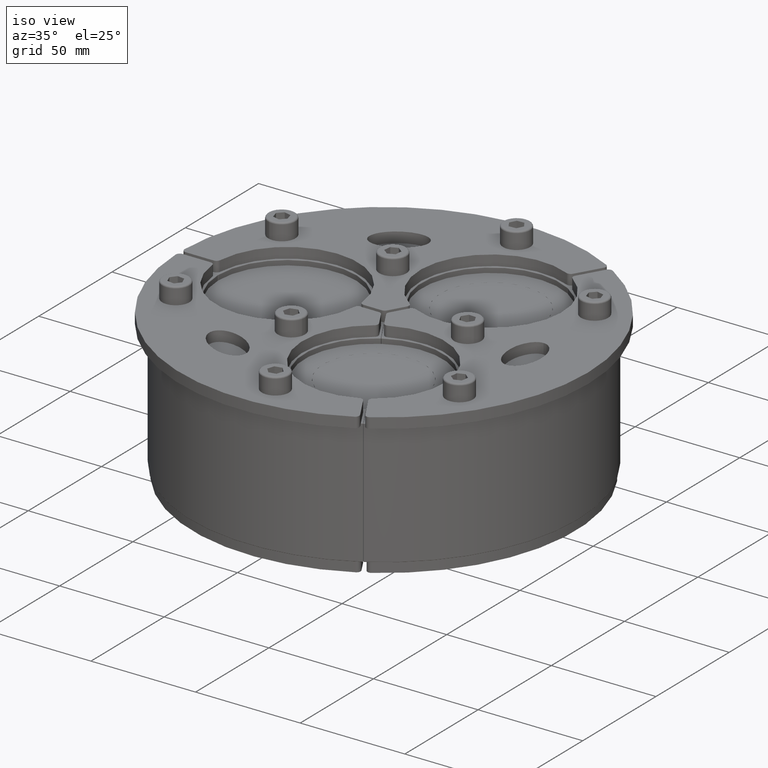
[diagram: clean part render]
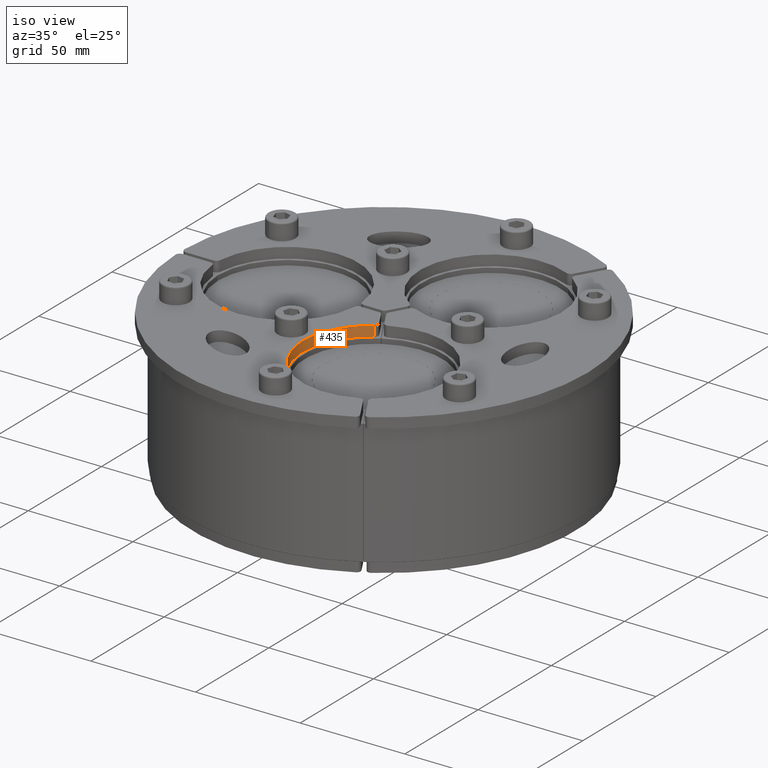
[diagram: same view with one face highlighted and labeled with its STEP entity id]
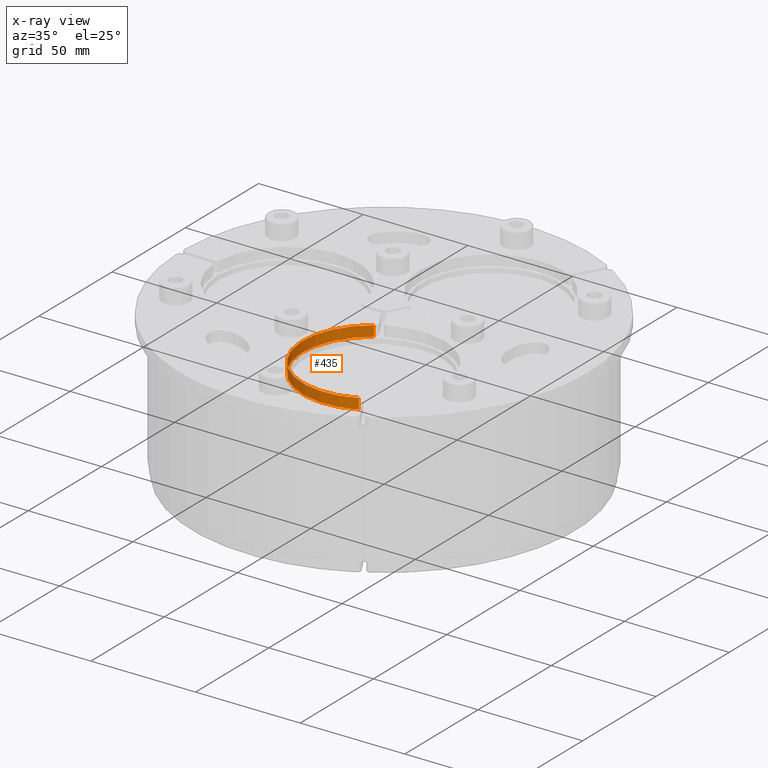
[diagram: x-ray of the same camera — body ghosted, the highlighted face saturated]
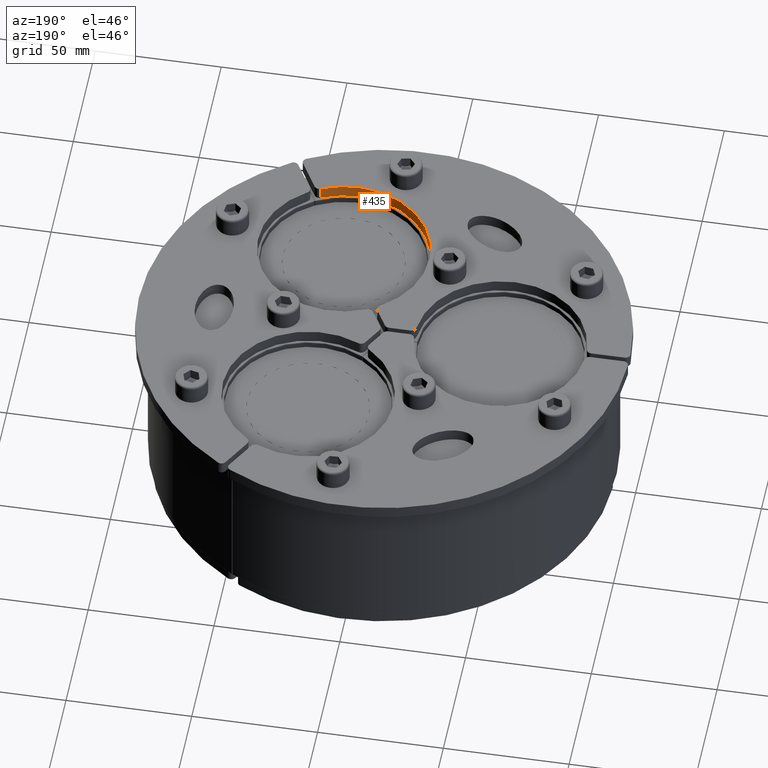
[diagram: same view with one face highlighted and labeled with its STEP entity id]
A machine part, iso view. The second image highlights one B-rep face of the part: STEP entity #435.
The next image is the same camera in x-ray: the body ghosted, the highlighted face saturated — about 0% of this face is hidden behind the body in this view.
A second angle (auxiliary view) of the same face is appended — the face is thin or edge-on in the first view.
In plain terms, the highlighted cylindrical surface (partial cylindrical patch) has radius 34 mm, axis along (0, -0, 1).
Its self-contained STEP definition (entity closure, byte-faithful):
#245=CARTESIAN_POINT('',(37.612130742004354,70.812788092741613,0.0));
#246=VERTEX_POINT('',#245);
#254=CARTESIAN_POINT('',(3.730391969883773,12.127895090652308,0.0));
#255=VERTEX_POINT('',#254);
#256=CARTESIAN_POINT('',(23.124999999999972,40.0536749250303,0.0));
#257=DIRECTION('',(0.0,0.0,1.0));
#258=DIRECTION('',(-1.0,0.0,0.0));
#259=AXIS2_PLACEMENT_3D('',#256,#257,#258);
#260=CIRCLE('',#259,34.0);
#261=EDGE_CURVE('',#246,#255,#260,.T.);
#393=CARTESIAN_POINT('',(37.612130742004354,70.812788092741613,5.0));
#394=VERTEX_POINT('',#393);
#402=CARTESIAN_POINT('',(37.612130742004354,70.812788092741613,5.0));
#403=DIRECTION('',(0.0,0.0,-1.0));
#404=VECTOR('',#403,5.0);
#405=LINE('',#402,#404);
#406=EDGE_CURVE('',#394,#246,#405,.T.);
#411=CARTESIAN_POINT('',(23.124999999999972,40.0536749250303,5.0));
#412=DIRECTION('',(0.0,0.0,-1.0));
#413=DIRECTION('',(-1.0,0.0,0.0));
#414=AXIS2_PLACEMENT_3D('',#411,#412,#413);
#415=CYLINDRICAL_SURFACE('',#414,34.0);
#416=ORIENTED_EDGE('',*,*,#406,.F.);
#417=CARTESIAN_POINT('',(3.730391969883773,12.127895090652308,5.0));
#418=VERTEX_POINT('',#417);
#419=CARTESIAN_POINT('',(23.124999999999972,40.0536749250303,5.0));
#420=DIRECTION('',(0.0,0.0,-1.0));
#421=DIRECTION('',(-1.0,0.0,0.0));
#422=AXIS2_PLACEMENT_3D('',#419,#420,#421);
#423=CIRCLE('',#422,34.0);
#424=EDGE_CURVE('',#418,#394,#423,.T.);
#425=ORIENTED_EDGE('',*,*,#424,.F.);
#426=CARTESIAN_POINT('',(3.730391969883773,12.127895090652308,0.0));
#427=DIRECTION('',(0.0,0.0,1.0));
#428=VECTOR('',#427,5.0);
#429=LINE('',#426,#428);
#430=EDGE_CURVE('',#255,#418,#429,.T.);
#431=ORIENTED_EDGE('',*,*,#430,.F.);
#432=ORIENTED_EDGE('',*,*,#261,.F.);
#433=EDGE_LOOP('',(#416,#425,#431,#432));
#434=FACE_OUTER_BOUND('',#433,.T.);
#435=ADVANCED_FACE('',(#434),#415,.F.);